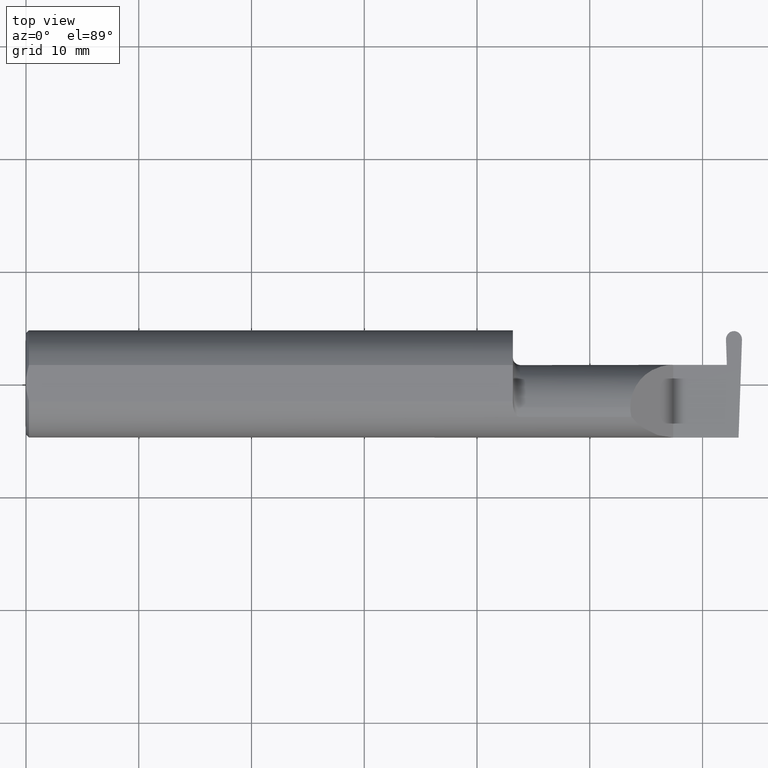
[diagram: clean part render]
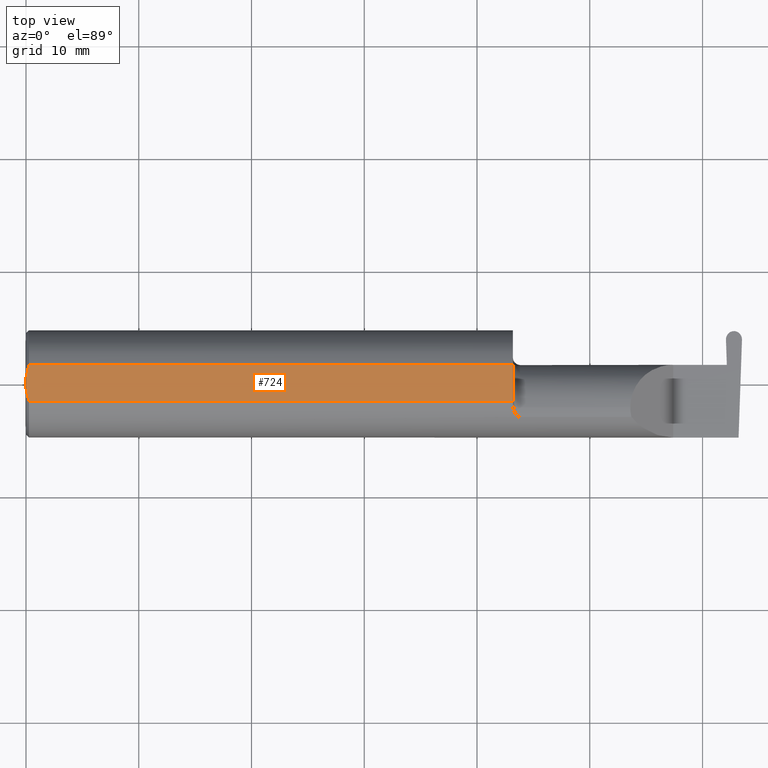
[diagram: same view with one face highlighted and labeled with its STEP entity id]
A machine part, top view. The second image highlights one B-rep face of the part: STEP entity #724.
In plain terms, the highlighted planar face has unit normal (0, 0, 1).
Its self-contained STEP definition (entity closure, byte-faithful):
#7 = EDGE_CURVE ( 'NONE', #12, #704, #144, .T. ) ;
#9 = DIRECTION ( 'NONE',  ( 0.000000000000000000, 1.000000000000000000, 0.000000000000000000 ) ) ;
#12 = VERTEX_POINT ( 'NONE', #316 ) ;
#77 = EDGE_CURVE ( 'NONE', #168, #467, #140, .T. ) ;
#99 = B_SPLINE_CURVE_WITH_KNOTS ( 'NONE', 3,
 ( #118, #555, #295, #742 ),
 .UNSPECIFIED., .F., .F.,
 ( 4, 4 ),
 ( 0.009771445421851331775, 0.01092787937989104369 ),
 .UNSPECIFIED. ) ;
#106 = VERTEX_POINT ( 'NONE', #131 ) ;
#115 = CARTESIAN_POINT ( 'NONE',  ( 0.001616639753276021213, 0.03405189565400638246, 0.1763499999999999235 ) ) ;
#118 = CARTESIAN_POINT ( 'NONE',  ( 0.01000000000000013205, -0.06325108694718235836, 0.1763499999999999235 ) ) ;
#121 = CARTESIAN_POINT ( 'NONE',  ( 0.000000000000000000, 0.01880691362238934988, 0.1763499999999999235 ) ) ;
#131 = CARTESIAN_POINT ( 'NONE',  ( 0.01000000000000013205, 0.06325108694718235836, 0.1763499999999999235 ) ) ;
#133 = EDGE_CURVE ( 'NONE', #704, #386, #322, .T. ) ;
#140 = LINE ( 'NONE', #448, #549 ) ;
#144 = LINE ( 'NONE', #512, #387 ) ;
#168 = VERTEX_POINT ( 'NONE', #419 ) ;
#173 = CARTESIAN_POINT ( 'NONE',  ( 1.699999999999999956, 0.06325108694718235836, 0.1763499999999999235 ) ) ;
#186 = VECTOR ( 'NONE', #211, 39.37007874015748143 ) ;
#207 = FACE_OUTER_BOUND ( 'NONE', #694, .T. ) ;
#211 = DIRECTION ( 'NONE',  ( -1.000000000000000000, -0.000000000000000000, -0.000000000000000000 ) ) ;
#219 = DIRECTION ( 'NONE',  ( 1.000000000000000000, 0.000000000000000000, -0.000000000000000000 ) ) ;
#224 = DIRECTION ( 'NONE',  ( 0.000000000000000000, 0.000000000000000000, 1.000000000000000000 ) ) ;
#247 = DIRECTION ( 'NONE',  ( -0.000000000000000000, 1.000000000000000000, -0.000000000000000000 ) ) ;
#267 = CARTESIAN_POINT ( 'NONE',  ( 1.699999999999999956, -0.06325108694718287183, 0.1763499999999999235 ) ) ;
#293 = CARTESIAN_POINT ( 'NONE',  ( 0.005155213631852493573, 0.04890080824240055496, 0.1763499999999999235 ) ) ;
#295 = CARTESIAN_POINT ( 'NONE',  ( 0.001595548104417008695, -0.03385300050298640367, 0.1763499999999999235 ) ) ;
#300 = AXIS2_PLACEMENT_3D ( 'NONE', #563, #224, #219 ) ;
#314 = B_SPLINE_CURVE_WITH_KNOTS ( 'NONE', 3,
 ( #361, #115, #293, #739 ),
 .UNSPECIFIED., .F., .F.,
 ( 4, 4 ),
 ( 0.01188664626022242071, 0.01304646959483746725 ),
 .UNSPECIFIED. ) ;
#316 = CARTESIAN_POINT ( 'NONE',  ( 0.01000000000000013205, -0.06325108694718235836, 0.1763499999999999235 ) ) ;
#322 = LINE ( 'NONE', #579, #331 ) ;
#331 = VECTOR ( 'NONE', #9, 39.37007874015748143 ) ;
#339 = CARTESIAN_POINT ( 'NONE',  ( 0.000000000000000000, 0.06325108694718235836, 0.1763499999999999235 ) ) ;
#361 = CARTESIAN_POINT ( 'NONE',  ( 0.000000000000000000, 0.01880691362238934988, 0.1763499999999999235 ) ) ;
#369 = EDGE_CURVE ( 'NONE', #467, #106, #314, .T. ) ;
#386 = VERTEX_POINT ( 'NONE', #173 ) ;
#387 = VECTOR ( 'NONE', #518, 39.37007874015748143 ) ;
#409 = LINE ( 'NONE', #339, #186 ) ;
#412 = ORIENTED_EDGE ( 'NONE', *, *, #776, .F. ) ;
#419 = CARTESIAN_POINT ( 'NONE',  ( 0.000000000000000000, -0.01880691362238934641, 0.1763499999999999235 ) ) ;
#448 = CARTESIAN_POINT ( 'NONE',  ( 0.000000000000000000, 0.1873499999999998500, 0.1763499999999999235 ) ) ;
#467 = VERTEX_POINT ( 'NONE', #121 ) ;
#472 = PLANE ( 'NONE',  #300 ) ;
#507 = ORIENTED_EDGE ( 'NONE', *, *, #7, .T. ) ;
#512 = CARTESIAN_POINT ( 'NONE',  ( 0.000000000000000000, -0.06325108694718235836, 0.1763499999999999235 ) ) ;
#518 = DIRECTION ( 'NONE',  ( 1.000000000000000000, 0.000000000000000000, 0.000000000000000000 ) ) ;
#549 = VECTOR ( 'NONE', #247, 39.37007874015748143 ) ;
#555 = CARTESIAN_POINT ( 'NONE',  ( 0.005151108632379722968, -0.04888864921576022843, 0.1763499999999999235 ) ) ;
#563 = CARTESIAN_POINT ( 'NONE',  ( 2.876828993045917215, 0.1873499999999998500, 0.1763499999999999235 ) ) ;
#579 = CARTESIAN_POINT ( 'NONE',  ( 1.699999999999999956, 0.1873499999999998500, 0.1763499999999999235 ) ) ;
#608 = EDGE_CURVE ( 'NONE', #386, #106, #409, .T. ) ;
#667 = ORIENTED_EDGE ( 'NONE', *, *, #77, .F. ) ;
#681 = ORIENTED_EDGE ( 'NONE', *, *, #369, .F. ) ;
#694 = EDGE_LOOP ( 'NONE', ( #507, #757, #802, #681, #667, #412 ) ) ;
#704 = VERTEX_POINT ( 'NONE', #267 ) ;
#724 = ADVANCED_FACE ( 'NONE', ( #207 ), #472, .T. ) ;
#739 = CARTESIAN_POINT ( 'NONE',  ( 0.01000000000000013205, 0.06325108694718235836, 0.1763499999999999235 ) ) ;
#742 = CARTESIAN_POINT ( 'NONE',  ( 0.000000000000000000, -0.01880691362238934641, 0.1763499999999999235 ) ) ;
#757 = ORIENTED_EDGE ( 'NONE', *, *, #133, .T. ) ;
#776 = EDGE_CURVE ( 'NONE', #12, #168, #99, .T. ) ;
#802 = ORIENTED_EDGE ( 'NONE', *, *, #608, .T. ) ;